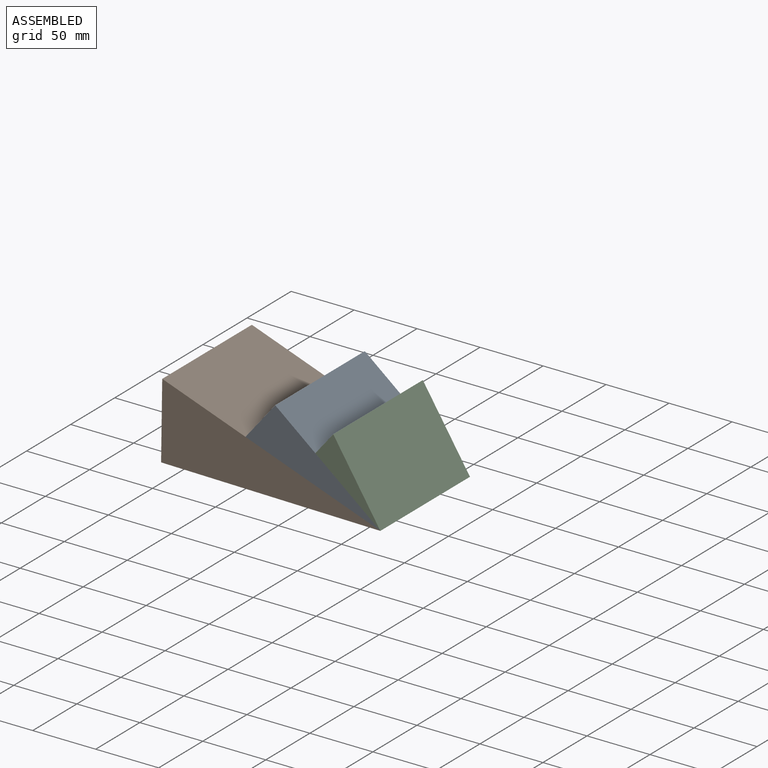
[diagram: assembled view]
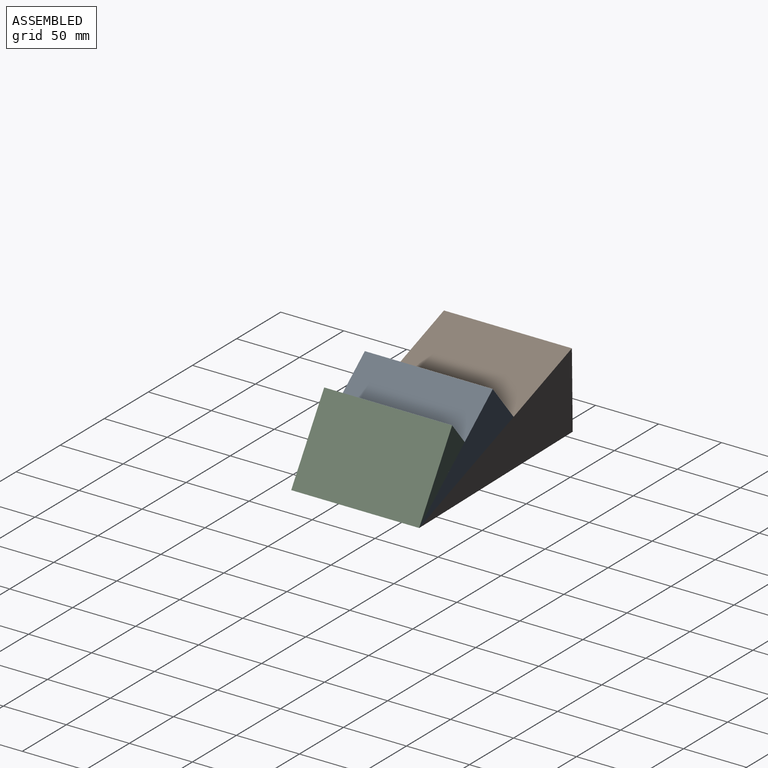
[diagram: assembled view, second angle]
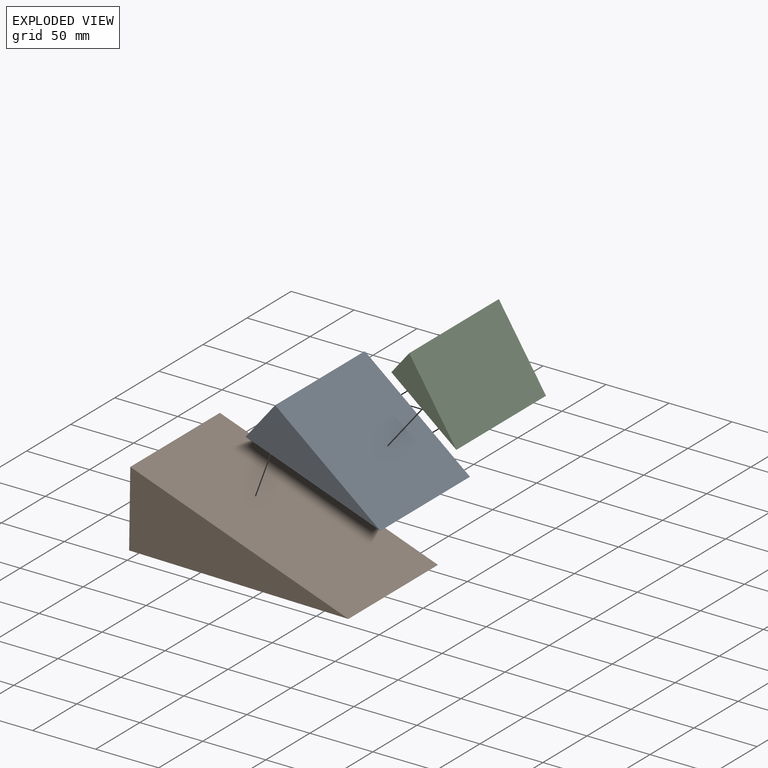
[diagram: exploded view]
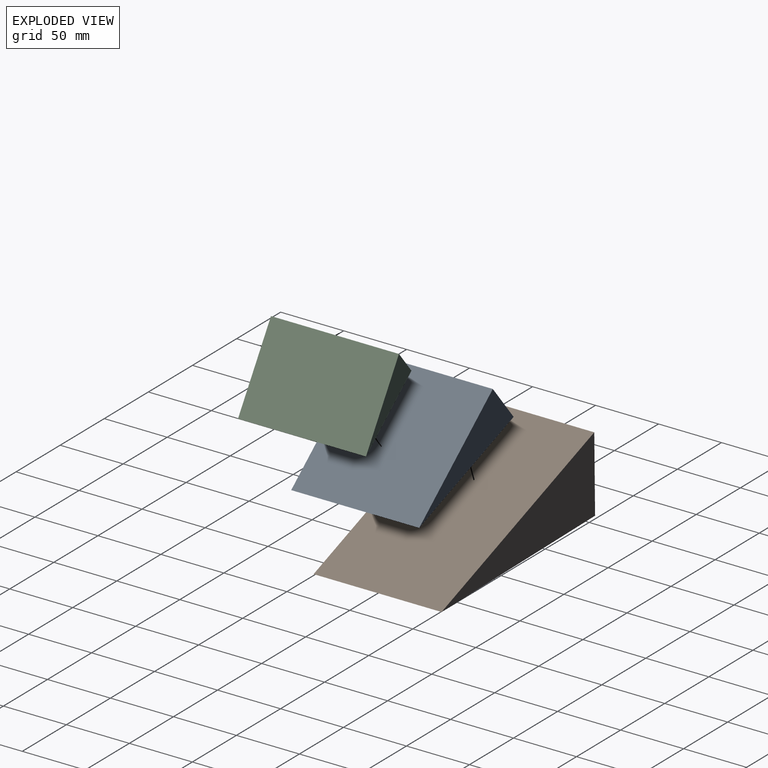
[diagram: exploded view, second angle]
ASSEMBLY  parts=3 mates=2
PART A: 5 faces, bbox 107.5x101.6x41.5 mm
  f0: plane 107.51x101.6mm, normal (0.04,0,-1), area 10931.6mm2, adj f1,f2,f3,f4
  f1: plane 101.6x37.36mm, normal (1,0,0.04), area 3799.1mm2, adj f0,f2,f3,f4
  f2: plane 106.07x101.6mm, normal (-0.36,0,0.93), area 11572.9mm2, adj f0,f1,f3,f4
  f3: plane 107.51x41.51mm, normal (0,-1,0), area 2011.6mm2, adj f0,f1,f2
  f4: plane 107.51x41.51mm, normal (0,1,0), area 2011.6mm2, adj f0,f1,f2
PART B: 5 faces, bbox 63.4x101.6x184.1 mm
  f0: plane 162.12x101.6mm, normal (-0.93,0,-0.36), area 17687.7mm2, adj f1,f2,f3,f4
  f1: plane 184.05x101.6mm, normal (1,0,0.04), area 18714.8mm2, adj f0,f2,f3,f4
  f2: plane 101.6x56.05mm, normal (-0.36,0,0.93), area 6114.8mm2, adj f0,f1,f3,f4
  f3: plane 184.05x63.44mm, normal (0,-1,0), area 5238.8mm2, adj f0,f1,f2
  f4: plane 184.05x63.44mm, normal (0,1,0), area 5238.8mm2, adj f0,f1,f2
PART C: 5 faces, bbox 23.7x101.6x70.2 mm
  f0: plane 101.6x62.12mm, normal (0.93,0,0.36), area 6756.1mm2, adj f1,f2,f3,f4
  f1: plane 101.6x70.15mm, normal (-1,0,-0.04), area 7132.5mm2, adj f0,f2,f3,f4
  f2: plane 101.6x21.02mm, normal (0.36,0,-0.93), area 2286.4mm2, adj f0,f1,f3,f4
  f3: plane 70.15x23.73mm, normal (0,-1,0), area 748.2mm2, adj f0,f1,f2
  f4: plane 70.15x23.73mm, normal (0,1,0), area 748.2mm2, adj f0,f1,f2
PLACE A rot(axis=(0,-1,0),138.7deg) t=(-33.97,104.39,55.17)mm
PLACE B rot(axis=(0,-1,0),67.8deg) t=(-135.54,104.39,-62)mm
PLACE C rot(axis=(0,1,0),150deg) t=(-32.06,104.39,6.48)mm
MATE fastened B.f1 <-> A.f2  axis (0.34,0,0.94) through (-1,53.59,0.14)mm
MATE fastened A.f0 <-> C.f0  axis (0.63,0,0.78) through (-1,53.59,0.14)mm
